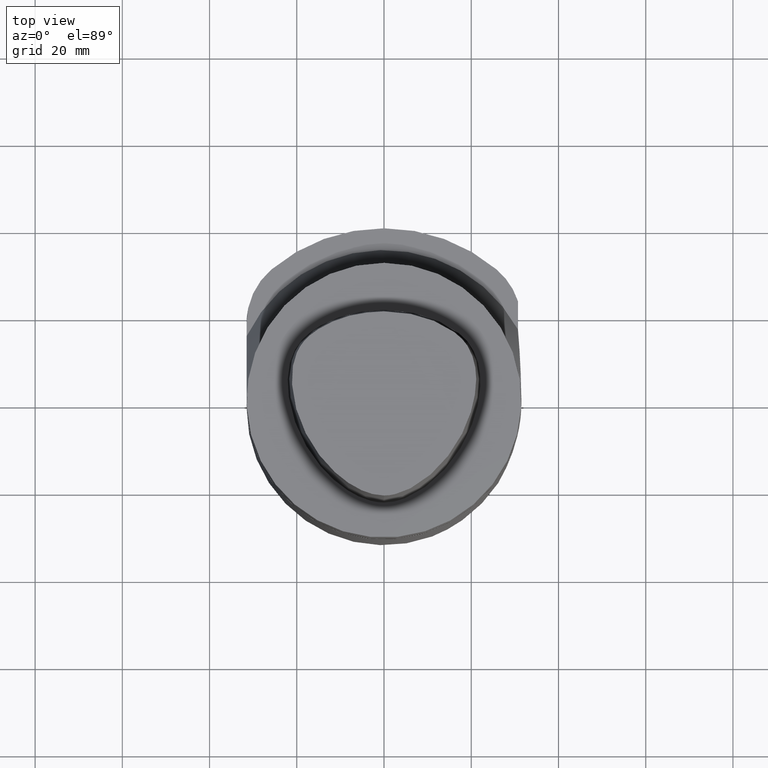
[diagram: clean part render]
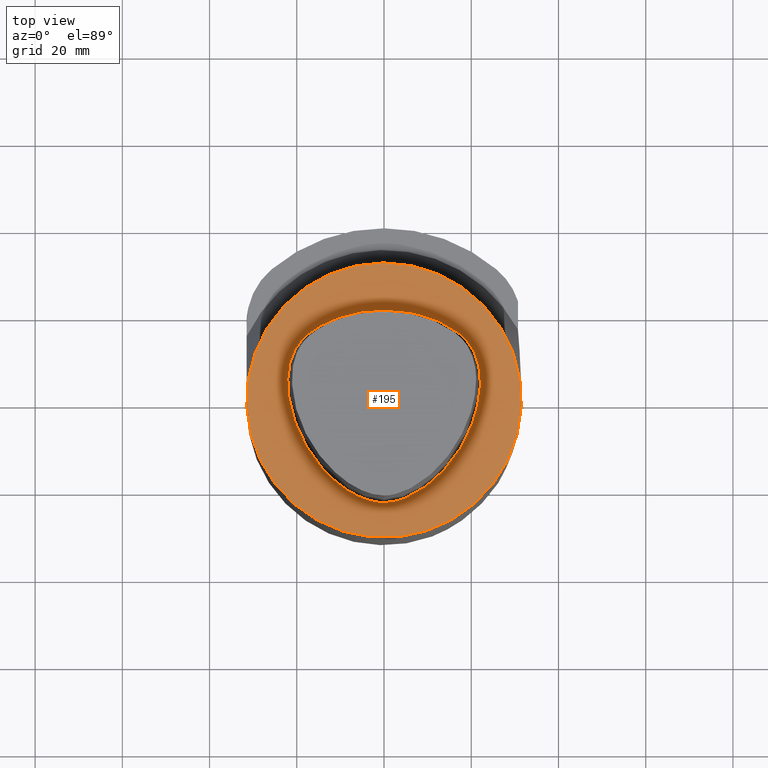
[diagram: same view with one face highlighted and labeled with its STEP entity id]
A machine part, top view. The second image highlights one B-rep face of the part: STEP entity #195.
In plain terms, the highlighted planar face has unit normal (0, -0, -1).
Its self-contained STEP definition (entity closure, byte-faithful):
#98=EDGE_CURVE('240[2]',#273,#273,#274,.T.);
#176=EDGE_CURVE('240[2]',#366,#389,#390,.T.);
#186=EDGE_CURVE('240[2]',#389,#316,#402,.T.);
#195=ADVANCED_FACE('240[2]',(#411,#412),#413,.F.);
#210=EDGE_CURVE('240[2]',#316,#366,#429,.T.);
#273=VERTEX_POINT('',#492);
#274=CIRCLE('',#493,31.4924999999997);
#316=VERTEX_POINT('',#558);
#366=VERTEX_POINT('',#717);
#389=VERTEX_POINT('',#826);
#390=CIRCLE('',#827,0.949936168379101);
#402=B_SPLINE_CURVE_WITH_KNOTS('',3,(#843,#844,#845,#846,#847,#848,#849,#850,#851,#852,#853,#854,#855,#856,#857,#858,#859,#860,#861,#862,#863,#864,#865,#866,#867,#868,#869,#870,#871,#872),.UNSPECIFIED.,.F.,.F.,(4,2,2,2,2,2,2,2,2,2,2,2,2,2,4),(0.0,0.576808184119594,1.15361636823919,1.43293031700624,1.7122442657733,1.99155821454036,2.27087216330741,2.85949822796588,3.15381126029511,3.44812429262434,4.36563722999232,5.28315016736029,5.8130055067864,6.21406971883035,6.6151339308743),.UNSPECIFIED.);
#411=FACE_OUTER_BOUND('',#894,.T.);
#412=FACE_BOUND('',#895,.T.);
#413=PLANE('',#896);
#429=B_SPLINE_CURVE_WITH_KNOTS('',3,(#922,#923,#924,#925,#926,#927,#928,#929,#930,#931,#932,#933,#934,#935,#936,#937,#938,#939,#940,#941,#942,#943,#944,#945,#946,#947,#948,#949,#950,#951,#952,#953),.UNSPECIFIED.,.F.,.F.,(4,2,2,2,2,2,2,2,2,2,2,2,2,2,2,4),(6.6151339308743,6.90353802293409,7.19194211499389,7.48034620705369,7.76875029911348,8.3273781966476,8.88600609418171,10.0632582234986,10.5220146921826,10.9807711608666,11.2101493952086,11.4395276295506,11.8982840982346,12.4281394376607,12.8292036497046,13.2302678617486),.UNSPECIFIED.);
#492=CARTESIAN_POINT('',(-3.85671893221476E-015,31.4924999999997,0.0));
#493=AXIS2_PLACEMENT_3D('',#1055,#1056,#1057);
#558=CARTESIAN_POINT('',(-0.04359356758149,-23.4691235068931,0.0));
#717=CARTESIAN_POINT('',(-0.044682985379347,20.6765087343109,0.0));
#826=CARTESIAN_POINT('',(0.045171994691285,20.6766009553285,0.0));
#827=AXIS2_PLACEMENT_3D('',#1160,#1161,#1162);
#843=CARTESIAN_POINT('',(0.045171994691285,20.6766009553285,0.0));
#844=CARTESIAN_POINT('',(1.96758797023018,20.5875555983123,0.0));
#845=CARTESIAN_POINT('',(3.95342611673668,20.4850284912479,-1.421085E-014));
#846=CARTESIAN_POINT('',(7.86342529995983,19.7967909190733,7.105427E-015));
#847=CARTESIAN_POINT('',(9.79439573378639,19.2503426360022,-1.421085E-014));
#848=CARTESIAN_POINT('',(12.5351742003408,18.1332577991903,0.0));
#849=CARTESIAN_POINT('',(13.4106560097683,17.7191970550452,0.0));
#850=CARTESIAN_POINT('',(15.1227536857037,16.7802221286297,7.105427E-015));
#851=CARTESIAN_POINT('',(15.9615364355591,16.2592643918937,0.0));
#852=CARTESIAN_POINT('',(17.5597683566648,15.0665385774434,0.0));
#853=CARTESIAN_POINT('',(18.3143568572283,14.3955246024635,-7.105427E-015));
#854=CARTESIAN_POINT('',(19.638502795217,12.8665014798265,-7.105427E-015));
#855=CARTESIAN_POINT('',(20.1979602542332,11.999774776593,0.0));
#856=CARTESIAN_POINT('',(21.5622718142072,9.15853750369237,0.0));
#857=CARTESIAN_POINT('',(21.9947483544612,7.02185767378744,0.0));
#858=CARTESIAN_POINT('',(22.1134563193034,3.90325125553384,0.0));
#859=CARTESIAN_POINT('',(22.0668279345839,2.87928778574124,0.0));
#860=CARTESIAN_POINT('',(21.8551986681238,0.853042087412899,0.0));
#861=CARTESIAN_POINT('',(21.6926789478513,-0.149498515836233,-1.421085E-014));
#862=CARTESIAN_POINT('',(20.816421377794,-4.23736740865811,1.421085E-014));
#863=CARTESIAN_POINT('',(19.659579746308,-7.20863943907163,-1.421085E-014));
#864=CARTESIAN_POINT('',(16.574666895304,-12.7137973313948,0.0));
#865=CARTESIAN_POINT('',(14.6473715787034,-15.2481179483411,-7.105427E-015));
#866=CARTESIAN_POINT('',(11.050022952355,-18.7018400427945,7.105427E-015));
#867=CARTESIAN_POINT('',(9.61826302632357,-19.8571497088389,0.0));
#868=CARTESIAN_POINT('',(6.85491632421896,-21.5712784212,-1.421085E-014));
#869=CARTESIAN_POINT('',(5.58035985461548,-22.2135461215161,0.0));
#870=CARTESIAN_POINT('',(2.86743329636734,-23.1704091567902,0.0));
#871=CARTESIAN_POINT('',(1.42611943322398,-23.4766376606116,0.0));
#872=CARTESIAN_POINT('',(-0.04359356758149,-23.4691235068931,0.0));
#894=EDGE_LOOP('',(#1190));
#895=EDGE_LOOP('',(#1191,#1192,#1193));
#896=AXIS2_PLACEMENT_3D('',#1194,#1195,#1196);
#922=CARTESIAN_POINT('',(-0.04359356758149,-23.4691235068931,0.0));
#923=CARTESIAN_POINT('',(-1.1004598519742,-23.4637201011149,7.105427E-015));
#924=CARTESIAN_POINT('',(-2.14400887535539,-23.2973076591387,0.0));
#925=CARTESIAN_POINT('',(-4.1424681795584,-22.7592077909815,0.0));
#926=CARTESIAN_POINT('',(-5.09815205870591,-22.390397570418,-7.105427E-015));
#927=CARTESIAN_POINT('',(-6.9351099930747,-21.5078613163183,-7.105427E-015));
#928=CARTESIAN_POINT('',(-7.80351845767777,-20.9996631554928,-7.105427E-015));
#929=CARTESIAN_POINT('',(-9.46943987011575,-19.8886274331692,-7.105427E-015));
#930=CARTESIAN_POINT('',(-10.2666299015956,-19.2853057570752,-7.105427E-015));
#931=CARTESIAN_POINT('',(-12.5026318141948,-17.3963733278614,2.131628E-014));
#932=CARTESIAN_POINT('',(-13.8422909676271,-16.0046937991299,0.0));
#933=CARTESIAN_POINT('',(-16.2509822407142,-13.0101546997628,1.421085E-014));
#934=CARTESIAN_POINT('',(-17.3206577927156,-11.4078127381174,-7.105427E-015));
#935=CARTESIAN_POINT('',(-20.1948648257688,-6.17855164445771,-7.105427E-015));
#936=CARTESIAN_POINT('',(-21.5264998810762,-2.27044916431131,-7.105427E-015));
#937=CARTESIAN_POINT('',(-22.1083077940609,3.36511341978747,-7.105427E-015));
#938=CARTESIAN_POINT('',(-22.1437891560423,4.95691742010578,-7.105427E-015));
#939=CARTESIAN_POINT('',(-21.7438554055,8.21486313336421,-7.105427E-015));
#940=CARTESIAN_POINT('',(-21.2813238062713,9.87761881981491,0.0));
#941=CARTESIAN_POINT('',(-20.1794569882097,12.0317423962685,0.0));
#942=CARTESIAN_POINT('',(-19.7024138468366,12.7593191234763,-7.105427E-015));
#943=CARTESIAN_POINT('',(-18.6262164065722,14.0443851003557,-7.105427E-015));
#944=CARTESIAN_POINT('',(-18.0388107856225,14.6116679410871,0.0));
#945=CARTESIAN_POINT('',(-16.1284788612342,16.197117807416,7.105427E-015));
#946=CARTESIAN_POINT('',(-14.7618818860482,17.03003182658,0.0));
#947=CARTESIAN_POINT('',(-11.6856166176821,18.5458506425855,0.0));
#948=CARTESIAN_POINT('',(-9.96274972961394,19.1800623227596,0.0));
#949=CARTESIAN_POINT('',(-6.84723700488339,20.0025241142556,0.0));
#950=CARTESIAN_POINT('',(-5.4719505740624,20.2496312304465,0.0));
#951=CARTESIAN_POINT('',(-2.7387517037224,20.5467807312008,0.0));
#952=CARTESIAN_POINT('',(-1.38248716057628,20.6117898211938,0.0));
#953=CARTESIAN_POINT('',(-0.044682985379347,20.6765087343109,0.0));
#1055=CARTESIAN_POINT('',(0.0,0.0,0.0));
#1056=DIRECTION('',(6.12323399573677E-017,-1.22464679914735E-016,-1.0));
#1057=DIRECTION('',(-1.22464679914735E-016,1.0,-1.22464679914735E-016));
#1160=CARTESIAN_POINT('',(0.001218547003662,19.7276821925089,0.0));
#1161=DIRECTION('',(0.0,0.0,-1.0));
#1162=DIRECTION('',(0.046269895968506,0.998928974816059,0.0));
#1190=ORIENTED_EDGE('',*,*,#98,.F.);
#1191=ORIENTED_EDGE('',*,*,#210,.T.);
#1192=ORIENTED_EDGE('',*,*,#176,.T.);
#1193=ORIENTED_EDGE('',*,*,#186,.T.);
#1194=CARTESIAN_POINT('',(-1.92835946610738E-015,15.7462499999998,0.0));
#1195=DIRECTION('',(9.18338008663382E-049,-1.22464679914735E-016,-1.0));
#1196=DIRECTION('',(-1.0,-7.49879891330927E-033,0.0));